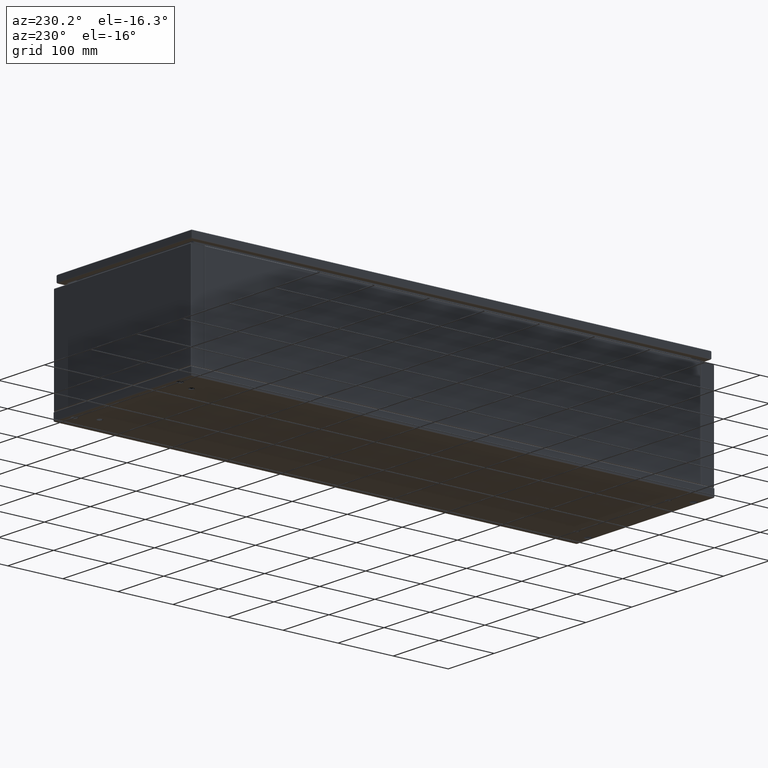
[diagram: clean part render]
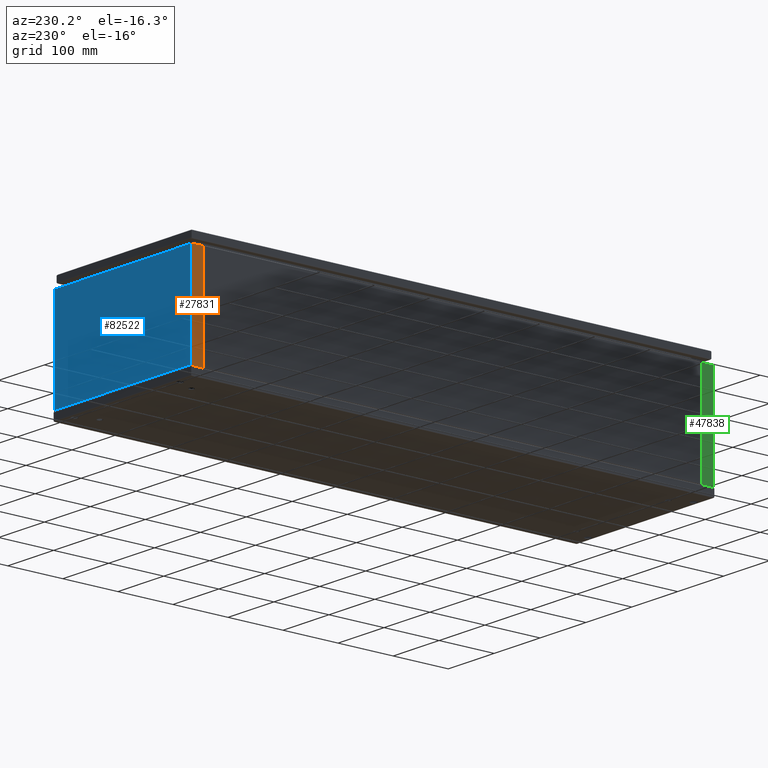
[diagram: same view with three faces highlighted in distinct colors, each labeled with its STEP entity id]
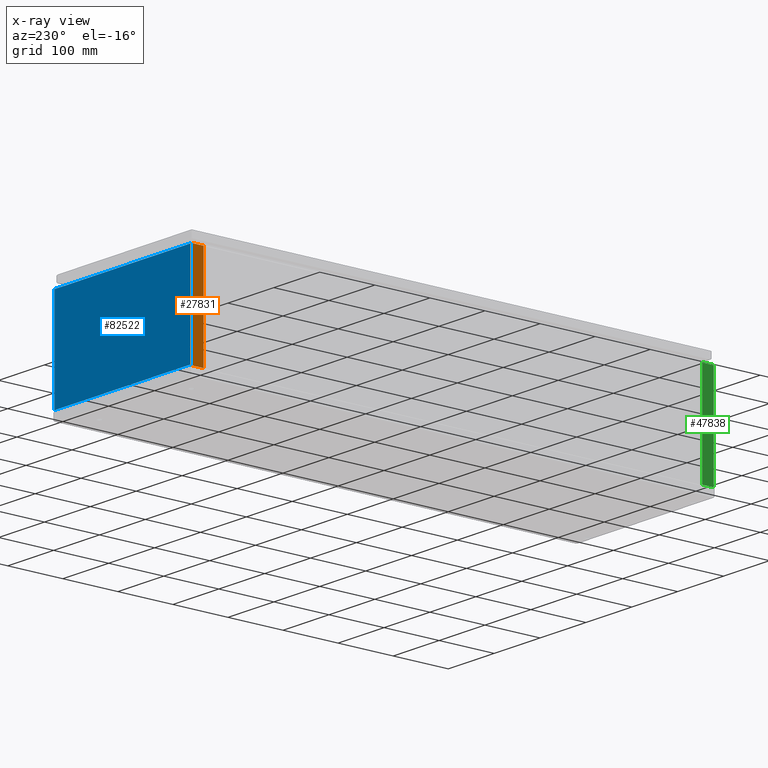
[diagram: x-ray of the same camera — body ghosted, the three highlighted faces saturated]
A machine part, auxiliary view with three faces highlighted in distinct colors.
The next image is the same camera in x-ray (body ghosted, the three faces saturated) — at least one of them is partly hidden behind the body in this view.
Their STEP definitions:

[orange] entity #27831 — the highlighted planar face has unit normal (1, -0, -0).
#2759 = CARTESIAN_POINT ( 'NONE',  ( -150.0000000000000000, 473.5000000000000000, 13.99999999999562000 ) ) ;
#5948 = VECTOR ( 'NONE', #19329, 1000.000000000000000 ) ;
#6187 = EDGE_LOOP ( 'NONE', ( #11210, #70767, #41211, #48107 ) ) ;
#11210 = ORIENTED_EDGE ( 'NONE', *, *, #48619, .T. ) ;
#13345 = LINE ( 'NONE', #26177, #5948 ) ;
#13419 = DIRECTION ( 'NONE',  ( 1.000000000000000000, -4.014789587429462000E-015, -5.233082485862810300E-016 ) ) ;
#13850 = CARTESIAN_POINT ( 'NONE',  ( -149.9999999999987800, 473.5000000000000000, 191.8999999999955200 ) ) ;
#14690 = CARTESIAN_POINT ( 'NONE',  ( -150.0000000000000000, 452.6000000000000200, 191.8999999999960300 ) ) ;
#15912 = LINE ( 'NONE', #13850, #20054 ) ;
#19329 = DIRECTION ( 'NONE',  ( 5.233082485863329900E-016, 1.296574032302414000E-014, 1.000000000000000000 ) ) ;
#20054 = VECTOR ( 'NONE', #27222, 1000.000000000000000 ) ;
#24541 = LINE ( 'NONE', #31566, #47931 ) ;
#26177 = CARTESIAN_POINT ( 'NONE',  ( -150.0000000000000000, 452.6000000000000200, 13.99999999999579900 ) ) ;
#26901 = CARTESIAN_POINT ( 'NONE',  ( -150.0000000000000000, 452.6000000000000200, 13.99999999999579900 ) ) ;
#27222 = DIRECTION ( 'NONE',  ( -4.466356092500940100E-015, -1.000000000000000000, 1.628610947626100000E-014 ) ) ;
#27831 = ADVANCED_FACE ( 'NONE', ( #59265 ), #75253, .F. ) ;
#27959 = LINE ( 'NONE', #2759, #84327 ) ;
#29794 = DIRECTION ( 'NONE',  ( -4.463221500386325400E-015, -1.000000000000000000, 9.500165521686560100E-015 ) ) ;
#31566 = CARTESIAN_POINT ( 'NONE',  ( -149.9999999999987800, 473.5000000000000000, 191.4999999999955100 ) ) ;
#41211 = ORIENTED_EDGE ( 'NONE', *, *, #78086, .F. ) ;
#44721 = EDGE_CURVE ( 'NONE', #81289, #50782, #27959, .T. ) ;
#46136 = DIRECTION ( 'NONE',  ( 5.233082485863329900E-016, 1.296574032302414000E-014, 1.000000000000000000 ) ) ;
#47931 = VECTOR ( 'NONE', #46136, 1000.000000000000000 ) ;
#48107 = ORIENTED_EDGE ( 'NONE', *, *, #44721, .T. ) ;
#48619 = EDGE_CURVE ( 'NONE', #50782, #83792, #13345, .T. ) ;
#50782 = VERTEX_POINT ( 'NONE', #26901 ) ;
#55847 = CARTESIAN_POINT ( 'NONE',  ( -150.0000000000000000, 473.5000000000000000, 13.99999999999560000 ) ) ;
#59265 = FACE_OUTER_BOUND ( 'NONE', #6187, .T. ) ;
#61897 = DIRECTION ( 'NONE',  ( 4.014789587429454900E-015, 1.000000000000000000, -1.296574032302414000E-014 ) ) ;
#66097 = CARTESIAN_POINT ( 'NONE',  ( -149.9999999999987800, 473.5000000000000000, 191.8999999999955200 ) ) ;
#67663 = EDGE_CURVE ( 'NONE', #87386, #83792, #15912, .T. ) ;
#70767 = ORIENTED_EDGE ( 'NONE', *, *, #67663, .F. ) ;
#75253 = PLANE ( 'NONE',  #83458 ) ;
#78086 = EDGE_CURVE ( 'NONE', #81289, #87386, #24541, .T. ) ;
#81289 = VERTEX_POINT ( 'NONE', #55847 ) ;
#82047 = CARTESIAN_POINT ( 'NONE',  ( -150.0000000000000000, 474.0000000000000000, 15.49999999999560000 ) ) ;
#83458 = AXIS2_PLACEMENT_3D ( 'NONE', #82047, #13419, #61897 ) ;
#83792 = VERTEX_POINT ( 'NONE', #14690 ) ;
#84327 = VECTOR ( 'NONE', #29794, 1000.000000000000000 ) ;
#87386 = VERTEX_POINT ( 'NONE', #66097 ) ;

[blue] entity #82522 — the highlighted planar face has unit normal (0, 1, -0).
#3759 = VECTOR ( 'NONE', #22649, 1000.000000000000000 ) ;
#4259 = EDGE_CURVE ( 'NONE', #52409, #61264, #40482, .T. ) ;
#5289 = CARTESIAN_POINT ( 'NONE',  ( -150.0000000000000000, 475.0000000000000000, 15.49999999999560000 ) ) ;
#9333 = EDGE_CURVE ( 'NONE', #60525, #61264, #29211, .T. ) ;
#10605 = EDGE_CURVE ( 'NONE', #60525, #58253, #64697, .T. ) ;
#10878 = PLANE ( 'NONE',  #76788 ) ;
#13947 = ORIENTED_EDGE ( 'NONE', *, *, #9333, .T. ) ;
#17704 = CARTESIAN_POINT ( 'NONE',  ( -150.0000000000000000, 475.0000000000000000, 15.49999999999560000 ) ) ;
#18337 = ORIENTED_EDGE ( 'NONE', *, *, #10605, .F. ) ;
#21193 = CARTESIAN_POINT ( 'NONE',  ( -148.4999999999988100, 475.0000000000000000, 191.4999999999955100 ) ) ;
#22649 = DIRECTION ( 'NONE',  ( -5.233082485863329900E-016, -1.296574032302414000E-014, -1.000000000000000000 ) ) ;
#24415 = EDGE_CURVE ( 'NONE', #52409, #58253, #69752, .T. ) ;
#29211 = LINE ( 'NONE', #29673, #40910 ) ;
#29673 = CARTESIAN_POINT ( 'NONE',  ( -148.5000000000000000, 475.0000000000000000, 15.49999999999560000 ) ) ;
#31403 = DIRECTION ( 'NONE',  ( 5.233082485863201700E-016, 1.000000000000000000, -1.296574032302414000E-014 ) ) ;
#35801 = ORIENTED_EDGE ( 'NONE', *, *, #24415, .T. ) ;
#38231 = DIRECTION ( 'NONE',  ( -1.000000000000000000, 5.233082485863269800E-016, 5.233082485863259900E-016 ) ) ;
#40482 = LINE ( 'NONE', #62200, #87213 ) ;
#40910 = VECTOR ( 'NONE', #63589, 1000.000000000000000 ) ;
#52409 = VERTEX_POINT ( 'NONE', #85445 ) ;
#52757 = CARTESIAN_POINT ( 'NONE',  ( 148.5000000000000000, 475.0000000000000000, 15.49999999999540100 ) ) ;
#56436 = ORIENTED_EDGE ( 'NONE', *, *, #4259, .F. ) ;
#58253 = VERTEX_POINT ( 'NONE', #52757 ) ;
#60525 = VERTEX_POINT ( 'NONE', #86220 ) ;
#60862 = EDGE_LOOP ( 'NONE', ( #56436, #35801, #18337, #13947 ) ) ;
#61264 = VERTEX_POINT ( 'NONE', #21193 ) ;
#62200 = CARTESIAN_POINT ( 'NONE',  ( -149.9999999999987800, 475.0000000000000000, 191.4999999999955100 ) ) ;
#62536 = CARTESIAN_POINT ( 'NONE',  ( 148.5000000000011900, 475.0000000000000000, 191.4999999999955100 ) ) ;
#63589 = DIRECTION ( 'NONE',  ( 5.233082485863329900E-016, 1.296574032302414000E-014, 1.000000000000000000 ) ) ;
#63685 = VECTOR ( 'NONE', #80726, 1000.000000000000000 ) ;
#64697 = LINE ( 'NONE', #5289, #63685 ) ;
#68128 = DIRECTION ( 'NONE',  ( -1.000000000000000000, 5.233082485863269800E-016, 5.233082485863259900E-016 ) ) ;
#69752 = LINE ( 'NONE', #62536, #3759 ) ;
#72821 = FACE_OUTER_BOUND ( 'NONE', #60862, .T. ) ;
#76788 = AXIS2_PLACEMENT_3D ( 'NONE', #17704, #31403, #38231 ) ;
#80726 = DIRECTION ( 'NONE',  ( 1.000000000000000000, -5.233082485863269800E-016, -5.233082485863259900E-016 ) ) ;
#82522 = ADVANCED_FACE ( 'NONE', ( #72821 ), #10878, .T. ) ;
#85445 = CARTESIAN_POINT ( 'NONE',  ( 148.5000000000011900, 475.0000000000000000, 191.4999999999955100 ) ) ;
#86220 = CARTESIAN_POINT ( 'NONE',  ( -148.5000000000000000, 475.0000000000000000, 15.49999999999560000 ) ) ;
#87213 = VECTOR ( 'NONE', #68128, 1000.000000000000000 ) ;

[green] entity #47838 — the highlighted planar face has unit normal (1, 0, 0).
#1630 = CARTESIAN_POINT ( 'NONE',  ( -149.9999999999981800, -473.5000000000000000, 14.00000000000000000 ) ) ;
#1705 = VECTOR ( 'NONE', #36750, 1000.000000000000000 ) ;
#2729 = ORIENTED_EDGE ( 'NONE', *, *, #61475, .F. ) ;
#3689 = CARTESIAN_POINT ( 'NONE',  ( -149.9999999999981800, -473.5000000000000000, 15.50000000000000000 ) ) ;
#6084 = LINE ( 'NONE', #26108, #73116 ) ;
#7440 = EDGE_CURVE ( 'NONE', #74319, #13686, #39998, .T. ) ;
#8419 = AXIS2_PLACEMENT_3D ( 'NONE', #24043, #45778, #51121 ) ;
#10461 = ORIENTED_EDGE ( 'NONE', *, *, #7440, .T. ) ;
#11865 = DIRECTION ( 'NONE',  ( 3.296965874913640200E-015, 1.000000000000000000, 9.366917085571558800E-017 ) ) ;
#13686 = VERTEX_POINT ( 'NONE', #17241 ) ;
#17241 = CARTESIAN_POINT ( 'NONE',  ( -149.9999999999979800, -452.6000000000000200, 14.00000000000000000 ) ) ;
#18778 = DIRECTION ( 'NONE',  ( -6.460819690009950100E-016, 1.000000000000000000, 6.986097267370700700E-015 ) ) ;
#24043 = CARTESIAN_POINT ( 'NONE',  ( -149.9999999999981800, -474.0000000000000000, 15.50000000000000000 ) ) ;
#24693 = CARTESIAN_POINT ( 'NONE',  ( -149.9999999999981800, -473.5000000000000000, 191.8999999999999800 ) ) ;
#25392 = LINE ( 'NONE', #79745, #82835 ) ;
#26108 = CARTESIAN_POINT ( 'NONE',  ( -149.9999999999981800, -473.5000000000000000, 14.00000000000000000 ) ) ;
#27181 = ORIENTED_EDGE ( 'NONE', *, *, #86310, .F. ) ;
#30116 = DIRECTION ( 'NONE',  ( 4.023572721128125300E-025, 3.491481336412970400E-015, -1.000000000000000000 ) ) ;
#36750 = DIRECTION ( 'NONE',  ( 4.023572721128125300E-025, 3.491481336412970400E-015, -1.000000000000000000 ) ) ;
#37108 = CARTESIAN_POINT ( 'NONE',  ( -149.9999999999979800, -452.6000000000000200, 191.8999999999999800 ) ) ;
#38917 = PLANE ( 'NONE',  #8419 ) ;
#39998 = LINE ( 'NONE', #57878, #1705 ) ;
#45778 = DIRECTION ( 'NONE',  ( 1.000000000000000000, 1.605278258695185100E-015, 4.023629233993280200E-025 ) ) ;
#47838 = ADVANCED_FACE ( 'NONE', ( #60322 ), #38917, .F. ) ;
#51121 = DIRECTION ( 'NONE',  ( -1.605278258695185100E-015, 1.000000000000000000, 3.491481336412970400E-015 ) ) ;
#53810 = EDGE_CURVE ( 'NONE', #75188, #74319, #25392, .T. ) ;
#57878 = CARTESIAN_POINT ( 'NONE',  ( -149.9999999999979800, -452.6000000000000200, 191.8999999999999800 ) ) ;
#60322 = FACE_OUTER_BOUND ( 'NONE', #60633, .T. ) ;
#60633 = EDGE_LOOP ( 'NONE', ( #10461, #27181, #2729, #68896 ) ) ;
#61316 = VERTEX_POINT ( 'NONE', #1630 ) ;
#61475 = EDGE_CURVE ( 'NONE', #75188, #61316, #75658, .T. ) ;
#68228 = VECTOR ( 'NONE', #30116, 1000.000000000000000 ) ;
#68896 = ORIENTED_EDGE ( 'NONE', *, *, #53810, .T. ) ;
#73116 = VECTOR ( 'NONE', #11865, 1000.000000000000000 ) ;
#74319 = VERTEX_POINT ( 'NONE', #37108 ) ;
#75188 = VERTEX_POINT ( 'NONE', #24693 ) ;
#75658 = LINE ( 'NONE', #3689, #68228 ) ;
#79745 = CARTESIAN_POINT ( 'NONE',  ( -149.9999999999981800, -473.5000000000000000, 191.8999999999999800 ) ) ;
#82835 = VECTOR ( 'NONE', #18778, 1000.000000000000000 ) ;
#86310 = EDGE_CURVE ( 'NONE', #61316, #13686, #6084, .T. ) ;